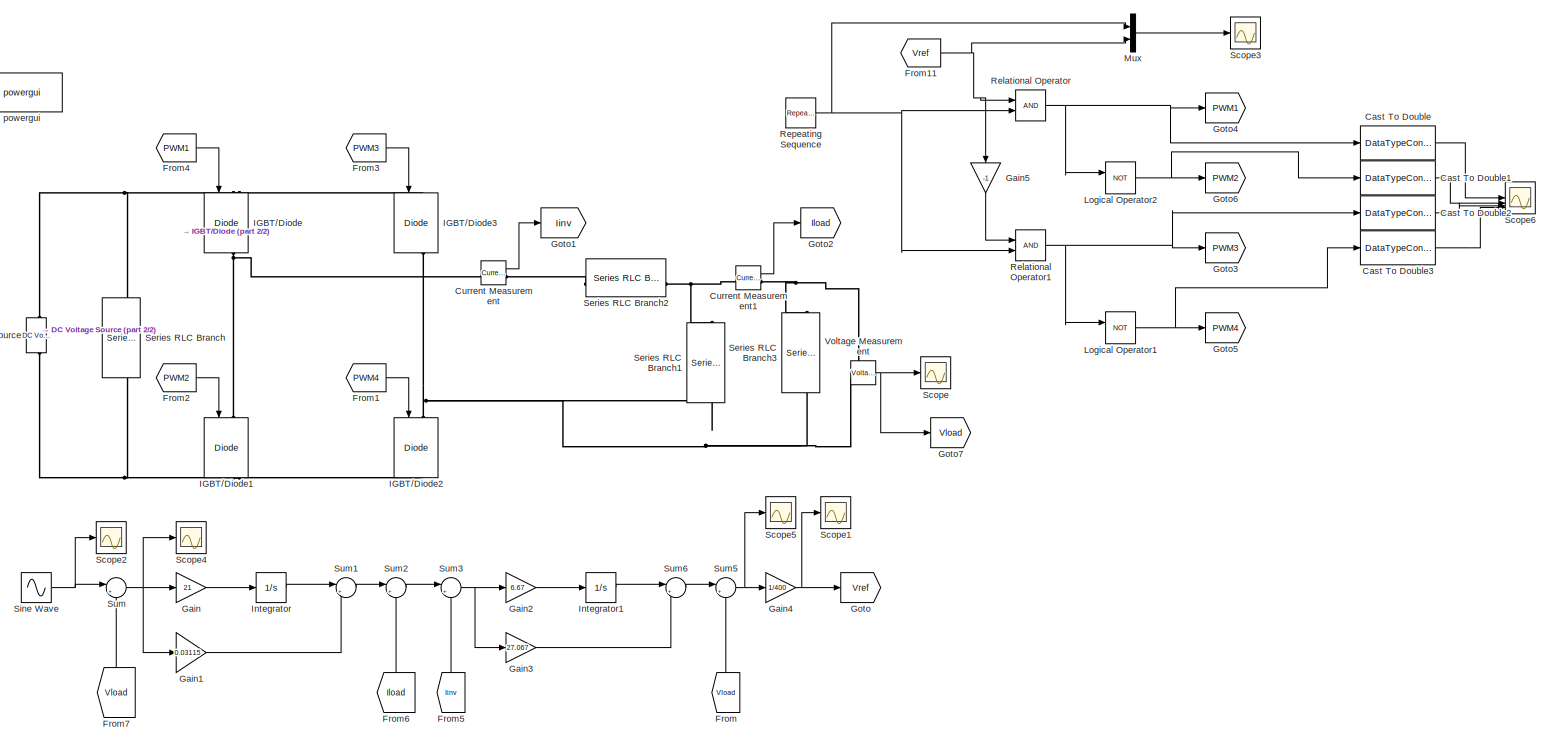
[diagram: root canvas - part 1/2, most of the canvas]
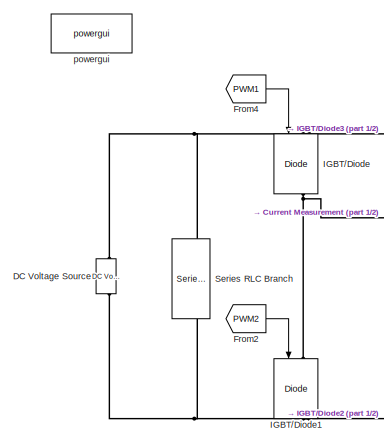
[diagram: root canvas - part 2/2, middle left region]
MODEL slx_2d4b5b5f65ee
KIND model
CONFIG AbsTol = auto
CONFIG EnableMultiTasking = off
CONFIG FixedStep = auto
CONFIG MaxStep = 1e-7
CONFIG MinStep = 1e-8
CONFIG RelTol = 1e-3
CONFIG SampleTimeConstraint = Unconstrained
CONFIG SolverName = ode45
CONFIG StartTime = 0.0
CONFIG StopTime = 0.1
BLOCK [DataTypeConversion] Cast To Double
  OutDataTypeStr = double
  RndMeth = Floor
  SaturateOnIntegerOverflow = off
BLOCK [DataTypeConversion] Cast To Double1
  OutDataTypeStr = double
  RndMeth = Floor
  SaturateOnIntegerOverflow = off
BLOCK [DataTypeConversion] Cast To Double2
  OutDataTypeStr = double
  RndMeth = Floor
  SaturateOnIntegerOverflow = off
BLOCK [DataTypeConversion] Cast To Double3
  OutDataTypeStr = double
  RndMeth = Floor
  SaturateOnIntegerOverflow = off
BLOCK [Reference] Current Measurement  REF=spsCurrentMeasurementLib/Current Measurement
  LibrarySourceBlock = sps_lib/Sensors and Measurements/Current Measurement
  SourceBlock = spsCurrentMeasurementLib/Current Measurement
  SourceType = Current Measurement
  UserDataPersistent = on
BLOCK [Reference] Current Measurement1  REF=spsCurrentMeasurementLib/Current Measurement
  LibrarySourceBlock = sps_lib/Sensors and Measurements/Current Measurement
  SourceBlock = spsCurrentMeasurementLib/Current Measurement
  SourceType = Current Measurement
  UserDataPersistent = on
BLOCK [Reference] DC Voltage Source  REF=spsDCVoltageSourceLib/DC Voltage Source
  LibrarySourceBlock = sps_lib/Sources/DC Voltage Source
  SourceBlock = spsDCVoltageSourceLib/DC Voltage Source
  SourceType = DC Voltage Source
BLOCK [From] From
  GotoTag = Vload
  NameLocation = right
BLOCK [From] From1
  GotoTag = PWM4
BLOCK [From] From11
  GotoTag = Vref
BLOCK [From] From2
  GotoTag = PWM2
BLOCK [From] From3
  GotoTag = PWM3
BLOCK [From] From4
  GotoTag = PWM1
BLOCK [From] From5
  GotoTag = Iinv
  NameLocation = right
BLOCK [From] From6
  GotoTag = Iload
  NameLocation = right
BLOCK [From] From7
  GotoTag = Vload
  NameLocation = right
BLOCK [Gain] Gain
  Gain = 21
BLOCK [Gain] Gain1
  Gain = 0.03115
BLOCK [Gain] Gain2
  Gain = 6.67
BLOCK [Gain] Gain3
  Gain = 27.067
BLOCK [Gain] Gain4
  Gain = 1/400
BLOCK [Gain] Gain5
  Gain = -1
  NameLocation = left
BLOCK [Goto] Goto
  GotoTag = Vref
BLOCK [Goto] Goto1
  GotoTag = Iinv
BLOCK [Goto] Goto2
  GotoTag = Iload
BLOCK [Goto] Goto3
  GotoTag = PWM3
BLOCK [Goto] Goto4
  GotoTag = PWM1
BLOCK [Goto] Goto5
  GotoTag = PWM4
BLOCK [Goto] Goto6
  GotoTag = PWM2
BLOCK [Goto] Goto7
  GotoTag = Vload
BLOCK [Reference] IGBT//Diode  REF=spsIGBTDiodeLib/IGBT//Diode
  LibrarySourceBlock = sps_lib/Power Electronics/IGBT//Diode
  NameLocation = left
  SourceBlock = spsIGBTDiodeLib/IGBT//Diode
  SourceType = IGBT/Diode
BLOCK [Reference] IGBT//Diode1  REF=spsIGBTDiodeLib/IGBT//Diode
  LibrarySourceBlock = sps_lib/Power Electronics/IGBT//Diode
  NameLocation = left
  SourceBlock = spsIGBTDiodeLib/IGBT//Diode
  SourceType = IGBT/Diode
BLOCK [Reference] IGBT//Diode2  REF=spsIGBTDiodeLib/IGBT//Diode
  LibrarySourceBlock = sps_lib/Power Electronics/IGBT//Diode
  NameLocation = left
  SourceBlock = spsIGBTDiodeLib/IGBT//Diode
  SourceType = IGBT/Diode
BLOCK [Reference] IGBT//Diode3  REF=spsIGBTDiodeLib/IGBT//Diode
  LibrarySourceBlock = sps_lib/Power Electronics/IGBT//Diode
  NameLocation = left
  SourceBlock = spsIGBTDiodeLib/IGBT//Diode
  SourceType = IGBT/Diode
BLOCK [Integrator] Integrator
BLOCK [Integrator] Integrator1
BLOCK [Logic] Logical Operator1
  AllPortsSameDT = off
  Operator = NOT
  OutDataTypeStr = boolean
BLOCK [Logic] Logical Operator2
  AllPortsSameDT = off
  Operator = NOT
  OutDataTypeStr = boolean
BLOCK [Mux] Mux
  DisplayOption = bar
  Inputs = 2
BLOCK [RelationalOperator] Relational Operator
  InputSameDT = off
  OutDataTypeStr = boolean
  RndMeth = Simplest
BLOCK [RelationalOperator] Relational Operator1
  InputSameDT = off
  OutDataTypeStr = boolean
  RndMeth = Simplest
BLOCK [Reference] Repeating Sequence  REF=simulink/Sources/Repeating
Sequence
  SourceBlock = simulink/Sources/Repeating\nSequence
  SourceType = Repeating table
BLOCK [Scope] Scope
  Floating = off
  NumInputPorts = 1
  ScopeSpecificationString = Simulink.scopes.TimeScopeBlockCfg('CurrentConfiguration', extmgr.ConfigurationSet(extmgr.Configuration('Core','General UI',true),extmgr.Configuration('Core','Source UI',true),extmgr.Configuration('Sources','WiredSimulink',true),extmgr.Configuration('Visuals','Time Domain',true,'SerializedDisplays',{struct('MinYLimReal','-318.9144','MaxYLimReal','356.02138','YLabelReal','','MinYLimMag',' 0.00000','...<+1424ch>
BLOCK [Scope] Scope1
  Floating = off
  NumInputPorts = 1
  ScopeSpecificationString = Simulink.scopes.TimeScopeBlockCfg('CurrentConfiguration', extmgr.ConfigurationSet(extmgr.Configuration('Core','General UI',true),extmgr.Configuration('Core','Source UI',true),extmgr.Configuration('Sources','WiredSimulink',true,'DataLoggingVariableName','ScopeData1'),extmgr.Configuration('Visuals','Time Domain',true,'SerializedDisplays',{struct('MinYLimReal','-1.20071','MaxYLimReal','1.20483','YLab...<+1412ch>
BLOCK [Scope] Scope2
  Floating = off
  NumInputPorts = 1
  ScopeSpecificationString = Simulink.scopes.TimeScopeBlockCfg('CurrentConfiguration', extmgr.ConfigurationSet(extmgr.Configuration('Core','General UI',true),extmgr.Configuration('Core','Source UI',true),extmgr.Configuration('Sources','WiredSimulink',true,'DataLoggingVariableName','ScopeData2'),extmgr.Configuration('Visuals','Time Domain',true,'SerializedDisplays',{struct('MinYLimReal','-375.00000','MaxYLimReal','375.00000','...<+1401ch>
BLOCK [Scope] Scope3
  Floating = off
  NumInputPorts = 1
  ScopeSpecificationString = Simulink.scopes.TimeScopeBlockCfg('CurrentConfiguration', extmgr.ConfigurationSet(extmgr.Configuration('Core','General UI',true),extmgr.Configuration('Core','Source UI',true),extmgr.Configuration('Sources','WiredSimulink',true,'DataLoggingVariableName','ScopeData3'),extmgr.Configuration('Visuals','Time Domain',true,'SerializedDisplays',{struct('MinYLimReal','-0.575','MaxYLimReal','1.175','YLabelRe...<+1421ch>
BLOCK [Scope] Scope4
  Floating = off
  NumInputPorts = 1
  ScopeSpecificationString = Simulink.scopes.TimeScopeBlockCfg('CurrentConfiguration', extmgr.ConfigurationSet(extmgr.Configuration('Core','General UI',true),extmgr.Configuration('Core','Source UI',true),extmgr.Configuration('Sources','WiredSimulink',true,'DataLoggingVariableName','ScopeData4'),extmgr.Configuration('Visuals','Time Domain',true,'SerializedDisplays',{struct('MinYLimReal','-67.77941','MaxYLimReal','67.72182','YL...<+1397ch>
BLOCK [Scope] Scope5
  Floating = off
  NumInputPorts = 1
  ScopeSpecificationString = Simulink.scopes.TimeScopeBlockCfg('CurrentConfiguration', extmgr.ConfigurationSet(extmgr.Configuration('Core','General UI',true),extmgr.Configuration('Core','Source UI',true),extmgr.Configuration('Sources','WiredSimulink',true,'DataLoggingVariableName','ScopeData5'),extmgr.Configuration('Visuals','Time Domain',true,'SerializedDisplays',{struct('MinYLimReal','-85.41667','MaxYLimReal','88.31017','YL...<+1369ch>
BLOCK [Scope] Scope6
  Floating = off
  NumInputPorts = 4
  ScopeSpecificationString = Simulink.scopes.TimeScopeBlockCfg('CurrentConfiguration', extmgr.ConfigurationSet(extmgr.Configuration('Core','General UI',true),extmgr.Configuration('Core','Source UI',true),extmgr.Configuration('Sources','WiredSimulink',true,'DataLoggingVariableName','ScopeData6'),extmgr.Configuration('Visuals','Time Domain',true,'SerializedDisplays',{struct('MinYLimReal','-0.125','MaxYLimReal','1.125','YLabelRe...<+3407ch>
BLOCK [Reference] Series RLC Branch  REF=spsSeriesRLCBranchLib/Series RLC Branch
  LibrarySourceBlock = sps_lib/Passives/Series RLC Branch
  NameLocation = left
  SourceBlock = spsSeriesRLCBranchLib/Series RLC Branch
  SourceType = Series RLC Branch
BLOCK [Reference] Series RLC Branch1  REF=spsSeriesRLCBranchLib/Series RLC Branch
  LibrarySourceBlock = sps_lib/Passives/Series RLC Branch
  NameLocation = left
  SourceBlock = spsSeriesRLCBranchLib/Series RLC Branch
  SourceType = Series RLC Branch
BLOCK [Reference] Series RLC Branch2  REF=spsSeriesRLCBranchLib/Series RLC Branch
  LibrarySourceBlock = sps_lib/Passives/Series RLC Branch
  NameLocation = top
  SourceBlock = spsSeriesRLCBranchLib/Series RLC Branch
  SourceType = Series RLC Branch
BLOCK [Reference] Series RLC Branch3  REF=spsSeriesRLCBranchLib/Series RLC Branch
  LibrarySourceBlock = sps_lib/Passives/Series RLC Branch
  NameLocation = left
  SourceBlock = spsSeriesRLCBranchLib/Series RLC Branch
  SourceType = Series RLC Branch
BLOCK [Sin] Sine Wave
  Amplitude = 300
  Frequency = 314.14
  SampleTime = 0
BLOCK [Sum] Sum
  Inputs = |+-
BLOCK [Sum] Sum1
  Inputs = |++
BLOCK [Sum] Sum2
  Inputs = |++
BLOCK [Sum] Sum3
  Inputs = |+-
BLOCK [Sum] Sum5
  Inputs = |++
BLOCK [Sum] Sum6
  Inputs = |++
BLOCK [Reference] Voltage Measurement  REF=spsVoltageMeasurementLib/Voltage Measurement
  LibrarySourceBlock = sps_lib/Sensors and Measurements/Voltage Measurement
  SourceBlock = spsVoltageMeasurementLib/Voltage Measurement
  SourceType = Voltage Measurement
  UserDataPersistent = on
BLOCK [Reference] powergui  REF=spspowerguiLib/powergui
  Priority = 1
  SourceBlock = spspowerguiLib/powergui
  SourceType = PSB option menu block
LINE Cast To Double1:1 -> Scope6:2
LINE Cast To Double2:1 -> Scope6:3
LINE Cast To Double3:1 -> Scope6:4
LINE Cast To Double:1 -> Scope6:1
LINE Current Measurement1:1 -> Goto2:1
LINE Current Measurement:1 -> Goto1:1
NET From11:1 -> Gain5:1, Mux:2, Relational Operator:1
LINE From1:1 -> IGBT//Diode2:1
LINE From2:1 -> IGBT//Diode1:1
LINE From3:1 -> IGBT//Diode3:1
LINE From4:1 -> IGBT//Diode:1
LINE From5:1 -> Sum3:2
LINE From6:1 -> Sum2:2
LINE From7:1 -> Sum:2
LINE From:1 -> Sum5:2
LINE Gain1:1 -> Sum1:2
LINE Gain2:1 -> Integrator1:1
LINE Gain3:1 -> Sum6:2
NET Gain4:1 -> Goto:1, Scope1:1
LINE Gain5:1 -> Relational Operator1:1
LINE Gain:1 -> Integrator:1
LINE Integrator1:1 -> Sum6:1
LINE Integrator:1 -> Sum1:1
NET Logical Operator1:1 -> Cast To Double3:1, Goto5:1
NET Logical Operator2:1 -> Cast To Double1:1, Goto6:1
LINE Mux:1 -> Scope3:1
NET Relational Operator1:1 -> Cast To Double2:1, Goto3:1, Logical Operator1:1
NET Relational Operator:1 -> Cast To Double:1, Goto4:1, Logical Operator2:1
NET Repeating Sequence:1 -> Mux:1, Relational Operator1:2, Relational Operator:2
NET Sine Wave:1 -> Scope2:1, Sum:1
LINE Sum1:1 -> Sum2:1
LINE Sum2:1 -> Sum3:1
NET Sum3:1 -> Gain2:1, Gain3:1
NET Sum5:1 -> Gain4:1, Scope5:1
LINE Sum6:1 -> Sum5:1
NET Sum:1 -> Gain1:1, Gain:1, Scope4:1
NET Voltage Measurement:1 -> Goto7:1, Scope:1
PNET net1: Current Measurement1:LConn1 -- Series RLC Branch1:LConn1 -- Series RLC Branch2:LConn1
PNET net2: Current Measurement1:RConn1 -- Series RLC Branch3:LConn1 -- Voltage Measurement:LConn1
PNET net3: Current Measurement:LConn1 -- IGBT//Diode1:LConn1 -- IGBT//Diode:RConn1
PLINE Current Measurement:RConn1 -- Series RLC Branch2:RConn1
PNET net4: DC Voltage Source:LConn1 -- IGBT//Diode1:RConn1 -- IGBT//Diode2:RConn1 -- Series RLC Branch:RConn1
PNET net5: DC Voltage Source:RConn1 -- IGBT//Diode3:LConn1 -- IGBT//Diode:LConn1 -- Series RLC Branch:LConn1
PNET net6: IGBT//Diode2:LConn1 -- IGBT//Diode3:RConn1 -- Series RLC Branch1:RConn1 -- Series RLC Branch3:RConn1 -- Voltage Measurement:LConn2
note: NET lines group one-source signal fan-out (src -> all destinations, sorted); 1:1 wires keep LINE; PNET lines group multi-terminal physical nets as a canonical sorted terminal list (undirected conserving connections); 2-terminal nets keep the pairwise PLINE form
